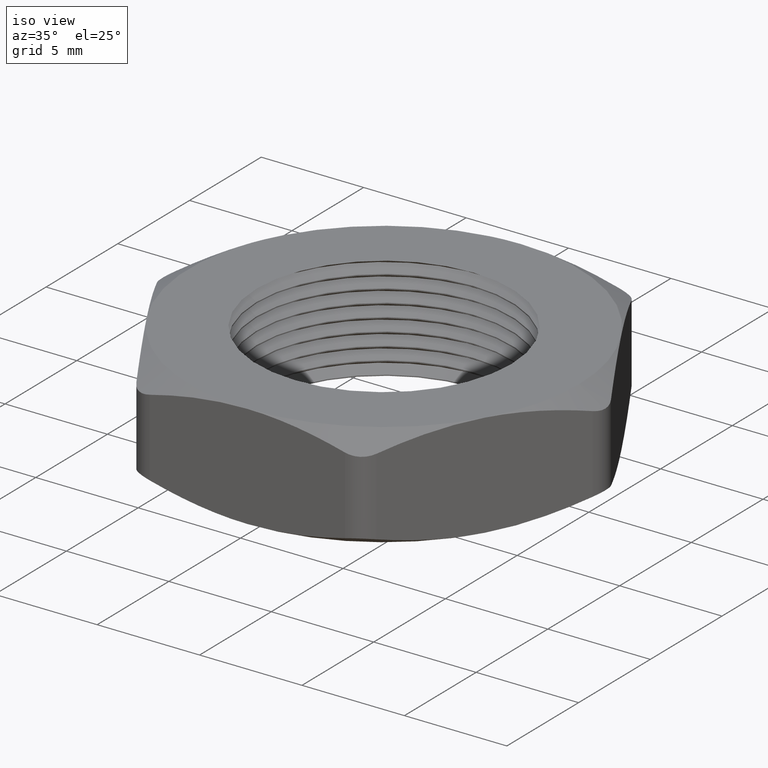
[diagram: clean part render]
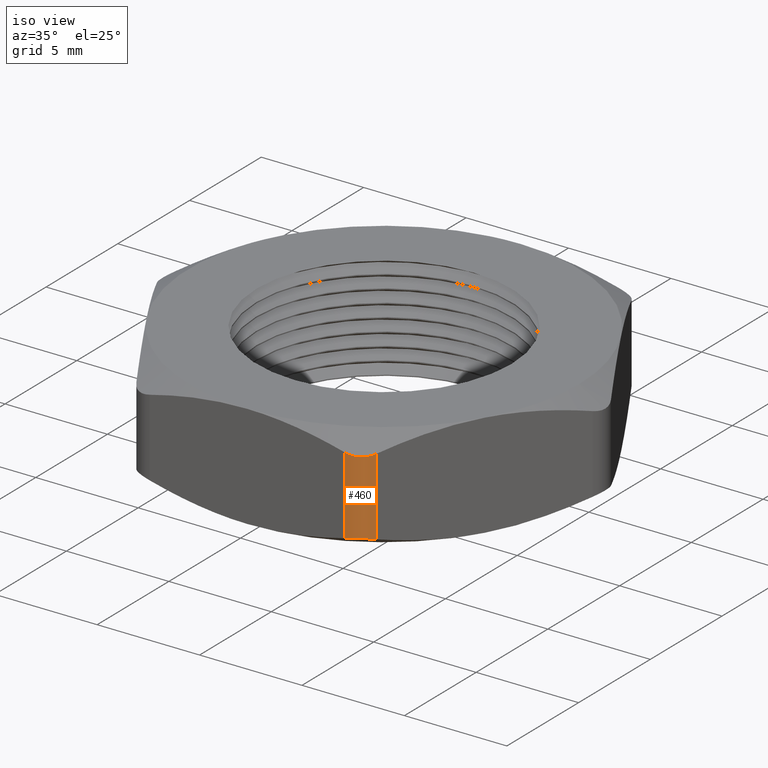
[diagram: same view with one face highlighted and labeled with its STEP entity id]
A machine part, iso view. The second image highlights one B-rep face of the part: STEP entity #460.
In plain terms, the highlighted cylindrical surface (edge-blend (fillet) strip) has radius 1.27 mm, axis along (0, 0, -1).
Its self-contained STEP definition (entity closure, byte-faithful):
#347 = VERTEX_POINT ( 'NONE', #1454 ) ;
#349 = EDGE_CURVE ( 'NONE', #347, #350, #1447, .T. ) ;
#350 = VERTEX_POINT ( 'NONE', #1443 ) ;
#370 = VERTEX_POINT ( 'NONE', #1472 ) ;
#373 = EDGE_CURVE ( 'NONE', #370, #374, #1464, .T. ) ;
#374 = VERTEX_POINT ( 'NONE', #1460 ) ;
#443 = ORIENTED_EDGE ( 'NONE', *, *, #486, .F. ) ;
#444 = ORIENTED_EDGE ( 'NONE', *, *, #373, .F. ) ;
#445 = ORIENTED_EDGE ( 'NONE', *, *, #470, .F. ) ;
#446 = ORIENTED_EDGE ( 'NONE', *, *, #349, .F. ) ;
#460 = ADVANCED_FACE ( 'NONE', ( #1637 ), #1635, .T. ) ;
#461 = EDGE_LOOP ( 'NONE', ( #443, #444, #445, #446 ) ) ;
#470 = EDGE_CURVE ( 'NONE', #350, #370, #1673, .T. ) ;
#486 = EDGE_CURVE ( 'NONE', #374, #347, #1751, .T. ) ;
#1443 = CARTESIAN_POINT ( 'NONE',  ( 0.2309401076758507100, -0.3499999999999997000, 0.02559096649278914900 ) ) ;
#1444 = DIRECTION ( 'NONE',  ( 0.0000000000000000000, 0.0000000000000000000, -1.000000000000000000 ) ) ;
#1445 = VECTOR ( 'NONE', #1444, 39.37007874015748100 ) ;
#1446 = CARTESIAN_POINT ( 'NONE',  ( 0.2309401076758507100, -0.3499999999999997000, 0.2000000000000000100 ) ) ;
#1447 = LINE ( 'NONE', #1446, #1445 ) ;
#1454 = CARTESIAN_POINT ( 'NONE',  ( 0.2309401076758610700, -0.3499999999999817100, 0.1744090335072160100 ) ) ;
#1460 = CARTESIAN_POINT ( 'NONE',  ( 0.1876388374866288200, -0.3749999999999996700, 0.1744090335072106800 ) ) ;
#1461 = DIRECTION ( 'NONE',  ( 0.0000000000000000000, 0.0000000000000000000, 1.000000000000000000 ) ) ;
#1462 = VECTOR ( 'NONE', #1461, 39.37007874015748100 ) ;
#1463 = CARTESIAN_POINT ( 'NONE',  ( 0.1876388374866288000, -0.3749999999999996700, 0.2000000000000000100 ) ) ;
#1464 = LINE ( 'NONE', #1463, #1462 ) ;
#1472 = CARTESIAN_POINT ( 'NONE',  ( 0.1876388374866287700, -0.3749999999999996700, 0.02559096649278930600 ) ) ;
#1635 = CYLINDRICAL_SURFACE ( 'NONE', #1636, 0.05000000000000001000 ) ;
#1636 = AXIS2_PLACEMENT_3D ( 'NONE', #1641, #1692, #1691 ) ;
#1637 = FACE_OUTER_BOUND ( 'NONE', #461, .T. ) ;
#1641 = CARTESIAN_POINT ( 'NONE',  ( 0.1876388374866288000, -0.3249999999999996800, 0.2000000000000000100 ) ) ;
#1668 = CARTESIAN_POINT ( 'NONE',  ( 0.2287868189352730000, -0.3537296055020459100, 0.02670357856226427900 ) ) ;
#1669 = CARTESIAN_POINT ( 'NONE',  ( 0.2309401076758507100, -0.3499999999999997000, 0.02559096649278914900 ) ) ;
#1673 = B_SPLINE_CURVE_WITH_KNOTS ( 'NONE', 3,
 ( #1669, #1668, #1726, #1725, #1724, #1723, #1722, #1721, #1720, #1719 ),
 .UNSPECIFIED., .F., .F.,
 ( 4, 2, 2, 2, 4 ),
 ( 8.940560153363745000E-019, 0.0003344051723303858200, 0.0006688103446607707800, 0.001003215516991155600, 0.001337620689321540700 ),
 .UNSPECIFIED. ) ;
#1691 = DIRECTION ( 'NONE',  ( -1.000000000000000000, 0.0000000000000000000, 0.0000000000000000000 ) ) ;
#1692 = DIRECTION ( 'NONE',  ( 0.0000000000000000000, 0.0000000000000000000, -1.000000000000000000 ) ) ;
#1719 = CARTESIAN_POINT ( 'NONE',  ( 0.1876388374866287700, -0.3749999999999996700, 0.02559096649278930600 ) ) ;
#1720 = CARTESIAN_POINT ( 'NONE',  ( 0.1919466985765833900, -0.3749999999999998900, 0.02670391018491574000 ) ) ;
#1721 = CARTESIAN_POINT ( 'NONE',  ( 0.1963125445149237800, -0.3744339278849048200, 0.02757112303380100700 ) ) ;
#1722 = CARTESIAN_POINT ( 'NONE',  ( 0.2047242654337062300, -0.3721914671482874400, 0.02872861903395196300 ) ) ;
#1723 = CARTESIAN_POINT ( 'NONE',  ( 0.2088710267960425000, -0.3704809104968381800, 0.02902972366464824300 ) ) ;
#1724 = CARTESIAN_POINT ( 'NONE',  ( 0.2164802531927264600, -0.3660790922801399600, 0.02902591628531952400 ) ) ;
#1725 = CARTESIAN_POINT ( 'NONE',  ( 0.2199995032653329600, -0.3633662779848017000, 0.02872597259901621700 ) ) ;
#1726 = CARTESIAN_POINT ( 'NONE',  ( 0.2261771511668569400, -0.3571555960095972900, 0.02755516287873759100 ) ) ;
#1739 = CARTESIAN_POINT ( 'NONE',  ( 0.2309401076758610700, -0.3499999999999817100, 0.1744090335072160100 ) ) ;
#1740 = CARTESIAN_POINT ( 'NONE',  ( 0.2287861771308890300, -0.3537307171398531000, 0.1732960898150900700 ) ) ;
#1741 = CARTESIAN_POINT ( 'NONE',  ( 0.2261130213296684800, -0.3572286145739259600, 0.1724288769662019900 ) ) ;
#1742 = CARTESIAN_POINT ( 'NONE',  ( 0.2199651329053769800, -0.3633921482108321600, 0.1712713809660492100 ) ) ;
#1743 = CARTESIAN_POINT ( 'NONE',  ( 0.2164103667094408000, -0.3661280705683245300, 0.1709702763353522800 ) ) ;
#1744 = CARTESIAN_POINT ( 'NONE',  ( 0.2087936671125946700, -0.3705169448226543500, 0.1709740837146800400 ) ) ;
#1745 = CARTESIAN_POINT ( 'NONE',  ( 0.2046846759807777700, -0.3722082976401339700, 0.1712740274009829900 ) ) ;
#1746 = CARTESIAN_POINT ( 'NONE',  ( 0.1962172436646593100, -0.3744529566708890100, 0.1724448371212617700 ) ) ;
#1747 = CARTESIAN_POINT ( 'NONE',  ( 0.1919454149677856900, -0.3749999999999996100, 0.1732964214377352700 ) ) ;
#1748 = CARTESIAN_POINT ( 'NONE',  ( 0.1876388374866288200, -0.3749999999999996700, 0.1744090335072106800 ) ) ;
#1751 = B_SPLINE_CURVE_WITH_KNOTS ( 'NONE', 3,
 ( #1748, #1747, #1746, #1745, #1744, #1743, #1742, #1741, #1740, #1739 ),
 .UNSPECIFIED., .F., .F.,
 ( 4, 2, 2, 2, 4 ),
 ( 8.673617379884035500E-019, 0.0003344051723305208600, 0.0006688103446610408500, 0.001003215516991560900, 0.001337620689322080800 ),
 .UNSPECIFIED. ) ;